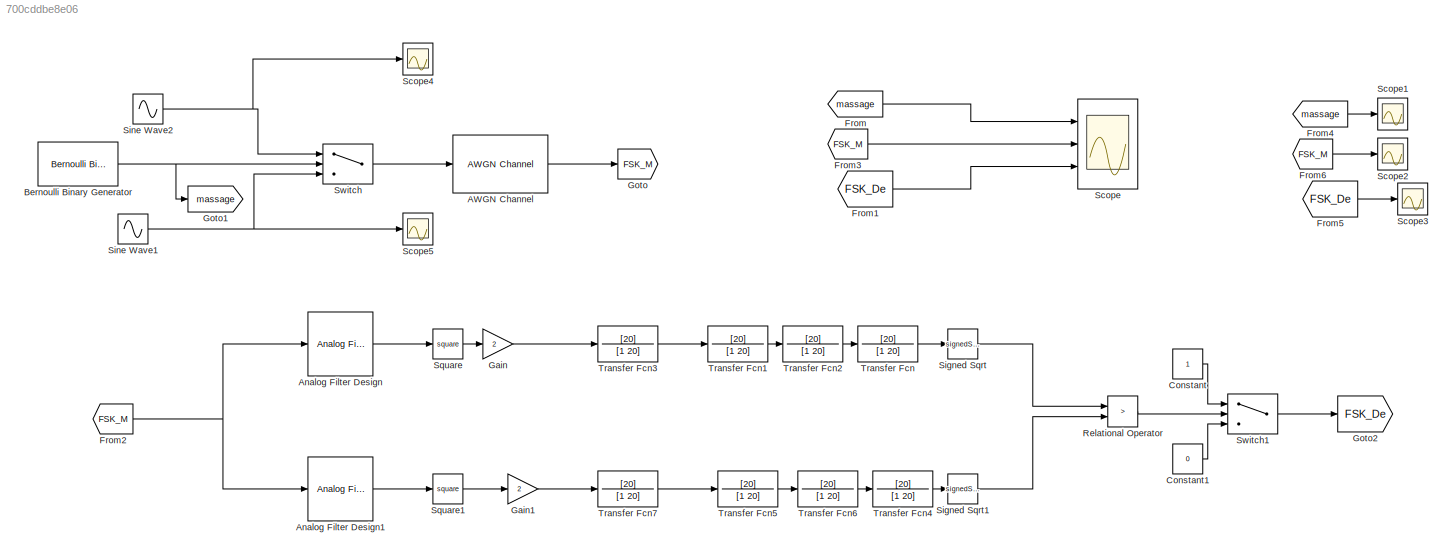
MODEL slx_700cddbe8e06
KIND model
CONFIG AbsTol = auto
CONFIG EnableMultiTasking = off
CONFIG FixedStep = auto
CONFIG MaxStep = 0.0001
CONFIG MinStep = auto
CONFIG RelTol = 1e-3
CONFIG SampleTimeConstraint = Unconstrained
CONFIG Solver = VariableStepAuto
CONFIG SolverName = VariableStepAuto
CONFIG StartTime = 0.0
CONFIG StopTime = 10.0
BLOCK [Reference] AWGN Channel  REF=commchan3/AWGN
Channel
  Ports = [1, 1]
  SourceBlock = commchan3/AWGN\nChannel
  SourceProductBaseCode = CM
  SourceType = AWGN Channel
  UserDataPersistent = on
BLOCK [Reference] Analog Filter Design  REF=dsparch4/Analog
Filter Design
  Ports = [1, 1]
  SourceBlock = dsparch4/Analog\nFilter Design
  SourceProductBaseCode = DS
  SourceType = Analog Filter Design
BLOCK [Reference] Analog Filter Design1  REF=dsparch4/Analog
Filter Design
  Ports = [1, 1]
  SourceBlock = dsparch4/Analog\nFilter Design
  SourceProductBaseCode = DS
  SourceType = Analog Filter Design
BLOCK [Reference] Bernoulli Binary Generator  REF=commrandsrc3/Bernoulli Binary
Generator
  Ports = [0, 1]
  SourceBlock = commrandsrc3/Bernoulli Binary\nGenerator
  SourceProductBaseCode = CM
  SourceType = Bernoulli Binary Generator
BLOCK [Constant] Constant
BLOCK [Constant] Constant1
  Value = 0
BLOCK [From] From
  GotoTag = massage
BLOCK [From] From1
  GotoTag = FSK_De
BLOCK [From] From2
  GotoTag = FSK_M
BLOCK [From] From3
  GotoTag = FSK_M
BLOCK [From] From4
  GotoTag = massage
BLOCK [From] From5
  GotoTag = FSK_De
BLOCK [From] From6
  GotoTag = FSK_M
BLOCK [Gain] Gain
  Gain = 2
BLOCK [Gain] Gain1
  Gain = 2
BLOCK [Goto] Goto
  GotoTag = FSK_M
BLOCK [Goto] Goto1
  GotoTag = massage
BLOCK [Goto] Goto2
  GotoTag = FSK_De
BLOCK [RelationalOperator] Relational Operator
  InputSameDT = off
  Operator = >
  OutDataTypeStr = boolean
  Ports = [2, 1]
  RndMeth = Simplest
BLOCK [Scope] Scope
  Floating = off
  NumInputPorts = 3
  Ports = [3]
  ScopeSpecificationString = Simulink.scopes.TimeScopeBlockCfg('CurrentConfiguration', extmgr.ConfigurationSet(extmgr.Configuration('Core','General UI',true),extmgr.Configuration('Core','Source UI',true),extmgr.Configuration('Sources','WiredSimulink',true),extmgr.Configuration('Visuals','Time Domain',true,'SerializedDisplays',{struct('MinYLimReal','-0.125','MaxYLimReal','1.125','YLabelReal','','MinYLimMag','0.00000','MaxYLimM...<+2824ch>
BLOCK [Scope] Scope1
  Floating = off
  NumInputPorts = 1
  Ports = [1]
  ScopeSpecificationString = Simulink.scopes.TimeScopeBlockCfg('CurrentConfiguration', extmgr.ConfigurationSet(extmgr.Configuration('Core','General UI',true),extmgr.Configuration('Core','Source UI',true),extmgr.Configuration('Sources','WiredSimulink',true,'DataLoggingVariableName','ScopeData1'),extmgr.Configuration('Visuals','Time Domain',true,'SerializedDisplays',{struct('MinYLimReal','-0.125','MaxYLimReal','1.125','YLabelRe...<+1402ch>
BLOCK [Scope] Scope2
  Floating = off
  NumInputPorts = 1
  Ports = [1]
  ScopeSpecificationString = Simulink.scopes.TimeScopeBlockCfg('CurrentConfiguration', extmgr.ConfigurationSet(extmgr.Configuration('Core','General UI',true),extmgr.Configuration('Core','Source UI',true),extmgr.Configuration('Sources','WiredSimulink',true,'DataLoggingVariableName','ScopeData2'),extmgr.Configuration('Visuals','Time Domain',true,'SerializedDisplays',{struct('MinYLimReal','-2.87003','MaxYLimReal','2.74419','YLab...<+1400ch>
BLOCK [Scope] Scope3
  Floating = off
  NumInputPorts = 1
  Ports = [1]
  ScopeSpecificationString = Simulink.scopes.TimeScopeBlockCfg('CurrentConfiguration', extmgr.ConfigurationSet(extmgr.Configuration('Core','General UI',true),extmgr.Configuration('Core','Source UI',true),extmgr.Configuration('Sources','WiredSimulink',true,'DataLoggingVariableName','ScopeData3'),extmgr.Configuration('Visuals','Time Domain',true,'SerializedDisplays',{struct('MinYLimReal','-0.125','MaxYLimReal','1.125','YLabelRe...<+1383ch>
BLOCK [Scope] Scope4
  Floating = off
  NumInputPorts = 1
  Ports = [1]
  ScopeSpecificationString = Simulink.scopes.TimeScopeBlockCfg('CurrentConfiguration', extmgr.ConfigurationSet(extmgr.Configuration('Core','General UI',true),extmgr.Configuration('Core','Source UI',true),extmgr.Configuration('Sources','WiredSimulink',true,'DataLoggingVariableName','ScopeData4'),extmgr.Configuration('Visuals','Time Domain',true,'SerializedDisplays',{struct('MinYLimReal','-1.25','MaxYLimReal','1.25','YLabelReal...<+1380ch>
BLOCK [Scope] Scope5
  Floating = off
  NumInputPorts = 1
  Ports = [1]
  ScopeSpecificationString = Simulink.scopes.TimeScopeBlockCfg('CurrentConfiguration', extmgr.ConfigurationSet(extmgr.Configuration('Core','General UI',true),extmgr.Configuration('Core','Source UI',true),extmgr.Configuration('Sources','WiredSimulink',true,'DataLoggingVariableName','ScopeData5'),extmgr.Configuration('Visuals','Time Domain',true,'SerializedDisplays',{struct('MinYLimReal','-1.25','MaxYLimReal','1.25','YLabelReal...<+1380ch>
BLOCK [Sqrt] Signed Sqrt
  Operator = signedSqrt
BLOCK [Sqrt] Signed Sqrt1
  Operator = signedSqrt
BLOCK [Sin] Sine Wave1
  Frequency = 31.4
  Ports = [0, 1]
  SampleTime = 0
BLOCK [Sin] Sine Wave2
  Frequency = 94.2
  Ports = [0, 1]
  SampleTime = 0
BLOCK [Math] Square
  Operator = square
  Ports = [1, 1]
BLOCK [Math] Square1
  Operator = square
  Ports = [1, 1]
BLOCK [Switch] Switch
  Criteria = u2 > Threshold
  InputSameDT = off
  SaturateOnIntegerOverflow = off
BLOCK [Switch] Switch1
  Criteria = u2 > Threshold
  InputSameDT = off
  SaturateOnIntegerOverflow = off
BLOCK [TransferFcn] Transfer Fcn
  Denominator = [1 20]
  Numerator = [20]
BLOCK [TransferFcn] Transfer Fcn1
  Denominator = [1 20]
  Numerator = [20]
BLOCK [TransferFcn] Transfer Fcn2
  Denominator = [1 20]
  Numerator = [20]
BLOCK [TransferFcn] Transfer Fcn3
  Denominator = [1 20]
  Numerator = [20]
BLOCK [TransferFcn] Transfer Fcn4
  Denominator = [1 20]
  Numerator = [20]
BLOCK [TransferFcn] Transfer Fcn5
  Denominator = [1 20]
  Numerator = [20]
BLOCK [TransferFcn] Transfer Fcn6
  Denominator = [1 20]
  Numerator = [20]
BLOCK [TransferFcn] Transfer Fcn7
  Denominator = [1 20]
  Numerator = [20]
LINE AWGN Channel:1 -> Goto:1
LINE Analog Filter Design1:1 -> Square1:1
LINE Analog Filter Design:1 -> Square:1
NET Bernoulli Binary Generator:1 -> Goto1:1, Switch:2
LINE Constant1:1 -> Switch1:3
LINE Constant:1 -> Switch1:1
LINE From1:1 -> Scope:3
NET From2:1 -> Analog Filter Design1:1, Analog Filter Design:1
LINE From3:1 -> Scope:2
LINE From4:1 -> Scope1:1
LINE From5:1 -> Scope3:1
LINE From6:1 -> Scope2:1
LINE From:1 -> Scope:1
LINE Gain1:1 -> Transfer Fcn7:1
LINE Gain:1 -> Transfer Fcn3:1
LINE Relational Operator:1 -> Switch1:2
LINE Signed Sqrt1:1 -> Relational Operator:2
LINE Signed Sqrt:1 -> Relational Operator:1
NET Sine Wave1:1 -> Scope5:1, Switch:3
NET Sine Wave2:1 -> Scope4:1, Switch:1
LINE Square1:1 -> Gain1:1
LINE Square:1 -> Gain:1
LINE Switch1:1 -> Goto2:1
LINE Switch:1 -> AWGN Channel:1
LINE Transfer Fcn1:1 -> Transfer Fcn2:1
LINE Transfer Fcn2:1 -> Transfer Fcn:1
LINE Transfer Fcn3:1 -> Transfer Fcn1:1
LINE Transfer Fcn4:1 -> Signed Sqrt1:1
LINE Transfer Fcn5:1 -> Transfer Fcn6:1
LINE Transfer Fcn6:1 -> Transfer Fcn4:1
LINE Transfer Fcn7:1 -> Transfer Fcn5:1
LINE Transfer Fcn:1 -> Signed Sqrt:1
note: NET lines group one-source signal fan-out (src -> all destinations, sorted); 1:1 wires keep LINE
